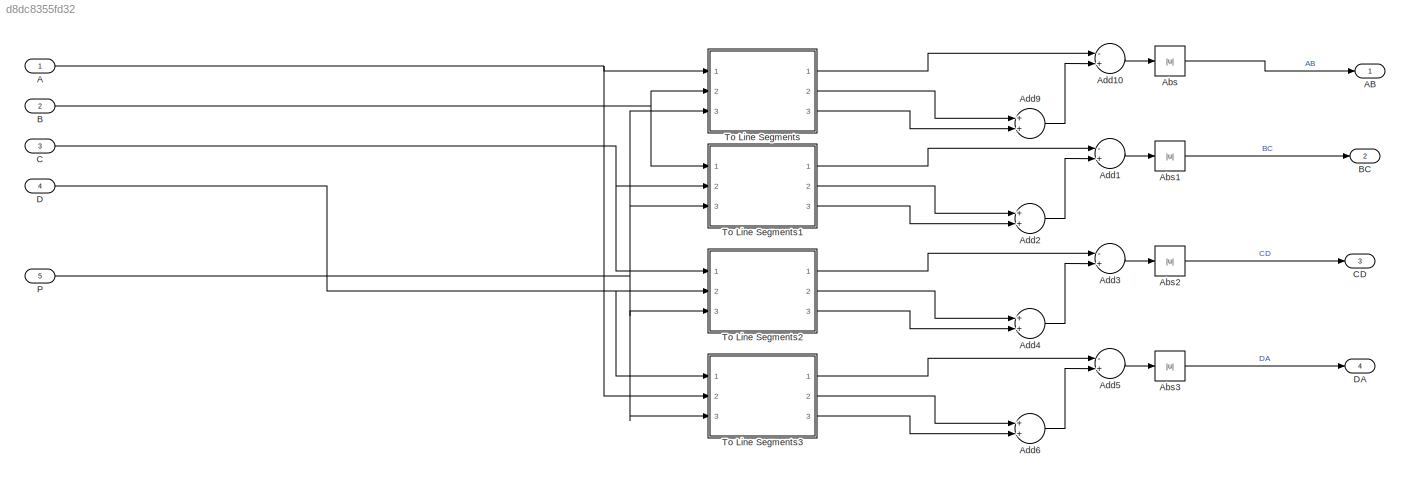
MODEL slx_d8dc8355fd32
KIND model
CONFIG AbsTol = auto
CONFIG EnableMultiTasking = off
CONFIG FixedStep = 0.01
CONFIG MaxStep = .01
CONFIG MinStep = auto
CONFIG RelTol = 1e-3
CONFIG SampleTimeConstraint = Unconstrained
CONFIG Solver = VariableStepAuto
CONFIG SolverName = VariableStepAuto
CONFIG StartTime = 0.0
CONFIG StopTime = 120
BLOCK [Inport] A
  IconDisplay = Port number
  OutDataTypeStr = double
  PortDimensions = 2
  SamplingMode = Sample based
  SignalType = real
BLOCK [Outport] AB
  IconDisplay = Port number
  OutDataTypeStr = double
  PortDimensions = 1
  SampleTime = 0
  SamplingMode = Sample based
  SignalType = real
BLOCK [Abs] Abs
  SaturateOnIntegerOverflow = off
BLOCK [Abs] Abs1
  SaturateOnIntegerOverflow = off
BLOCK [Abs] Abs2
  SaturateOnIntegerOverflow = off
BLOCK [Abs] Abs3
  SaturateOnIntegerOverflow = off
BLOCK [Sum] Add1
  InputSameDT = off
  Inputs = -+
  OutDataTypeStr = Inherit: Inherit via internal rule
  Ports = [2, 1]
  SaturateOnIntegerOverflow = off
BLOCK [Sum] Add10
  InputSameDT = off
  Inputs = -+
  OutDataTypeStr = Inherit: Inherit via internal rule
  Ports = [2, 1]
  SaturateOnIntegerOverflow = off
BLOCK [Sum] Add2
  InputSameDT = off
  OutDataTypeStr = Inherit: Inherit via internal rule
  Ports = [2, 1]
  SaturateOnIntegerOverflow = off
BLOCK [Sum] Add3
  InputSameDT = off
  Inputs = -+
  OutDataTypeStr = Inherit: Inherit via internal rule
  Ports = [2, 1]
  SaturateOnIntegerOverflow = off
BLOCK [Sum] Add4
  InputSameDT = off
  OutDataTypeStr = Inherit: Inherit via internal rule
  Ports = [2, 1]
  SaturateOnIntegerOverflow = off
BLOCK [Sum] Add5
  InputSameDT = off
  Inputs = -+
  OutDataTypeStr = Inherit: Inherit via internal rule
  Ports = [2, 1]
  SaturateOnIntegerOverflow = off
BLOCK [Sum] Add6
  InputSameDT = off
  OutDataTypeStr = Inherit: Inherit via internal rule
  Ports = [2, 1]
  SaturateOnIntegerOverflow = off
BLOCK [Sum] Add9
  InputSameDT = off
  OutDataTypeStr = Inherit: Inherit via internal rule
  Ports = [2, 1]
  SaturateOnIntegerOverflow = off
BLOCK [Inport] B
  IconDisplay = Port number
  OutDataTypeStr = double
  Port = 2
  PortDimensions = 2
  SamplingMode = Sample based
  SignalType = real
BLOCK [Outport] BC
  IconDisplay = Port number
  OutDataTypeStr = double
  Port = 2
  PortDimensions = 1
  SampleTime = 0
  SamplingMode = Sample based
  SignalType = real
BLOCK [Inport] C
  IconDisplay = Port number
  OutDataTypeStr = double
  Port = 3
  PortDimensions = 2
  SamplingMode = Sample based
  SignalType = real
BLOCK [Outport] CD
  IconDisplay = Port number
  OutDataTypeStr = double
  Port = 3
  PortDimensions = 1
  SampleTime = 0
  SamplingMode = Sample based
  SignalType = real
BLOCK [Inport] D
  IconDisplay = Port number
  OutDataTypeStr = double
  Port = 4
  PortDimensions = 2
  SamplingMode = Sample based
  SignalType = real
BLOCK [Outport] DA
  IconDisplay = Port number
  OutDataTypeStr = double
  Port = 4
  PortDimensions = 1
  SampleTime = 0
  SamplingMode = Sample based
  SignalType = real
BLOCK [Inport] P
  IconDisplay = Port number
  OutDataTypeStr = double
  Port = 5
  PortDimensions = 2
  SamplingMode = Sample based
  SignalType = real
BLOCK [ModelReference] To Line Segments
  ModelNameDialog = to_line_segments.slx
  ModelReferenceVersion = 1.639
  Ports = [3, 3]
BLOCK [ModelReference] To Line Segments1
  ModelNameDialog = to_line_segments.slx
  ModelReferenceVersion = 1.639
  Ports = [3, 3]
BLOCK [ModelReference] To Line Segments2
  ModelNameDialog = to_line_segments.slx
  ModelReferenceVersion = 1.639
  Ports = [3, 3]
BLOCK [ModelReference] To Line Segments3
  ModelNameDialog = to_line_segments.slx
  ModelReferenceVersion = 1.639
  Ports = [3, 3]
NET A:1 -> To Line Segments3:2, To Line Segments:1
LINE Abs1:1 -> BC:1
LINE Abs2:1 -> CD:1
LINE Abs3:1 -> DA:1
LINE Abs:1 -> AB:1
LINE Add10:1 -> Abs:1
LINE Add1:1 -> Abs1:1
LINE Add2:1 -> Add1:2
LINE Add3:1 -> Abs2:1
LINE Add4:1 -> Add3:2
LINE Add5:1 -> Abs3:1
LINE Add6:1 -> Add5:2
LINE Add9:1 -> Add10:2
NET B:1 -> To Line Segments1:1, To Line Segments:2
NET C:1 -> To Line Segments1:2, To Line Segments2:1
NET D:1 -> To Line Segments2:2, To Line Segments3:1
NET P:1 -> To Line Segments1:3, To Line Segments2:3, To Line Segments3:3, To Line Segments:3
LINE To Line Segments1:1 -> Add1:1
LINE To Line Segments1:2 -> Add2:1
LINE To Line Segments1:3 -> Add2:2
LINE To Line Segments2:1 -> Add3:1
LINE To Line Segments2:2 -> Add4:1
LINE To Line Segments2:3 -> Add4:2
LINE To Line Segments3:1 -> Add5:1
LINE To Line Segments3:2 -> Add6:1
LINE To Line Segments3:3 -> Add6:2
LINE To Line Segments:1 -> Add10:1
LINE To Line Segments:2 -> Add9:1
LINE To Line Segments:3 -> Add9:2
note: NET lines group one-source signal fan-out (src -> all destinations, sorted); 1:1 wires keep LINE
